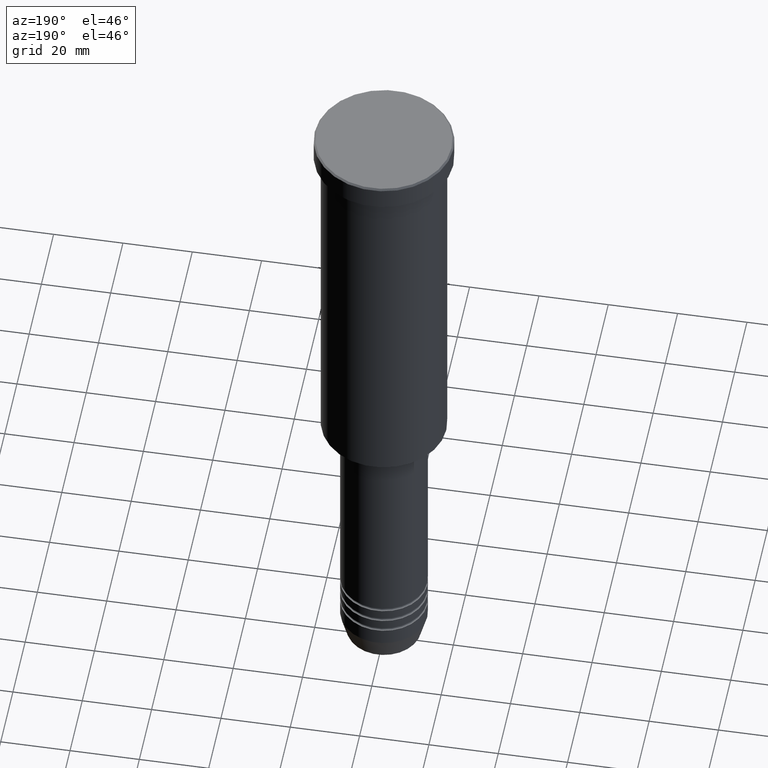
[diagram: clean part render]
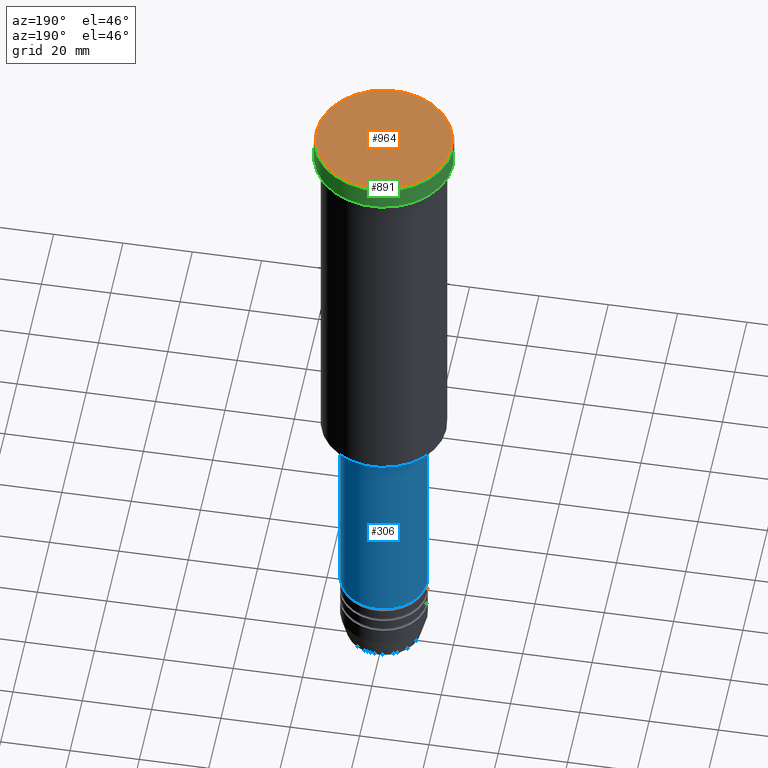
[diagram: same view with three faces highlighted in distinct colors, each labeled with its STEP entity id]
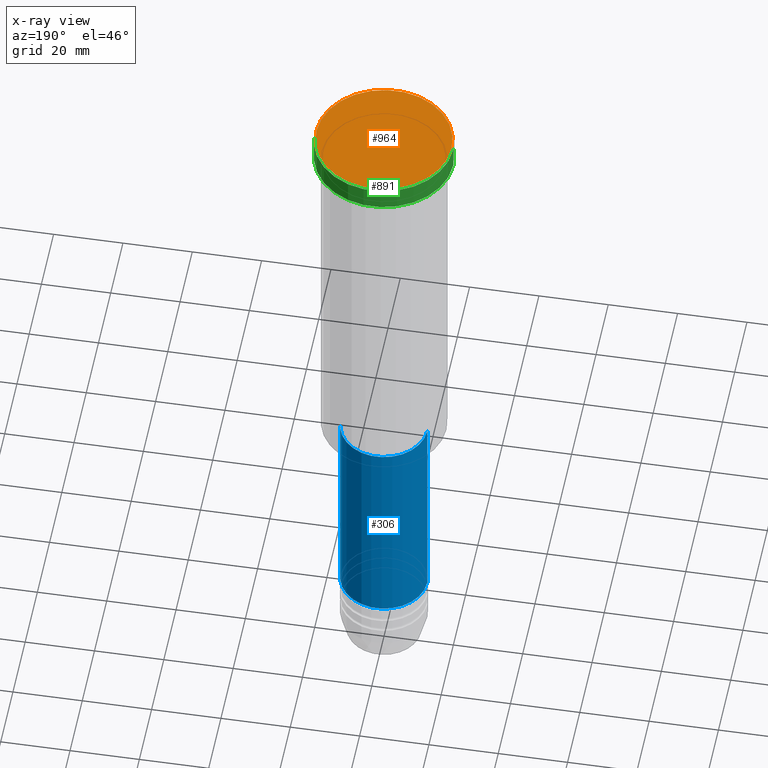
[diagram: x-ray of the same camera — body ghosted, the three highlighted faces saturated]
A machine part, auxiliary view with three faces highlighted in distinct colors.
The next image is the same camera in x-ray (body ghosted, the three faces saturated) — at least one of them is partly hidden behind the body in this view.
Their STEP definitions:

[orange] entity #964 — the highlighted planar face has unit normal (0, -0, 1).
#17 = VERTEX_POINT ( 'NONE', #415 ) ;
#36 = DIRECTION ( 'NONE',  ( -0.000000000000000000, -0.000000000000000000, 1.000000000000000000 ) ) ;
#52 = PLANE ( 'NONE',  #161 ) ;
#100 = EDGE_LOOP ( 'NONE', ( #1017, #473 ) ) ;
#161 = AXIS2_PLACEMENT_3D ( 'NONE', #398, #864, #773 ) ;
#289 = CARTESIAN_POINT ( 'NONE',  ( 0.000000000000000000, 0.000000000000000000, 0.000000000000000000 ) ) ;
#313 = CARTESIAN_POINT ( 'NONE',  ( 0.000000000000000000, 0.000000000000000000, 0.000000000000000000 ) ) ;
#353 = CIRCLE ( 'NONE', #973, 19.49999999999998934 ) ;
#398 = CARTESIAN_POINT ( 'NONE',  ( 0.000000000000000000, 0.000000000000000000, 0.000000000000000000 ) ) ;
#415 = CARTESIAN_POINT ( 'NONE',  ( 19.49999999999998934, 2.418677428316021937E-15, 0.000000000000000000 ) ) ;
#473 = ORIENTED_EDGE ( 'NONE', *, *, #921, .T. ) ;
#563 = DIRECTION ( 'NONE',  ( -0.000000000000000000, -0.000000000000000000, 1.000000000000000000 ) ) ;
#613 = VERTEX_POINT ( 'NONE', #693 ) ;
#693 = CARTESIAN_POINT ( 'NONE',  ( -19.49999999999998934, 0.000000000000000000, 0.000000000000000000 ) ) ;
#757 = DIRECTION ( 'NONE',  ( 1.000000000000000000, 0.000000000000000000, 0.000000000000000000 ) ) ;
#773 = DIRECTION ( 'NONE',  ( 1.000000000000000000, 0.000000000000000000, 0.000000000000000000 ) ) ;
#786 = CIRCLE ( 'NONE', #1035, 19.49999999999998934 ) ;
#851 = EDGE_CURVE ( 'NONE', #613, #17, #786, .T. ) ;
#857 = FACE_OUTER_BOUND ( 'NONE', #100, .T. ) ;
#864 = DIRECTION ( 'NONE',  ( 0.000000000000000000, -0.000000000000000000, 1.000000000000000000 ) ) ;
#921 = EDGE_CURVE ( 'NONE', #17, #613, #353, .T. ) ;
#964 = ADVANCED_FACE ( 'NONE', ( #857 ), #52, .T. ) ;
#973 = AXIS2_PLACEMENT_3D ( 'NONE', #289, #36, #757 ) ;
#1017 = ORIENTED_EDGE ( 'NONE', *, *, #851, .T. ) ;
#1035 = AXIS2_PLACEMENT_3D ( 'NONE', #313, #563, #1149 ) ;
#1149 = DIRECTION ( 'NONE',  ( 1.000000000000000000, 0.000000000000000000, 0.000000000000000000 ) ) ;

[blue] entity #306 — the highlighted cylindrical surface (partial cylindrical patch) has radius 12.5 mm, axis along (-0, -0, 1).
#34 = CARTESIAN_POINT ( 'NONE',  ( -12.50000000000000000, 1.530808498934191521E-15, -117.0000000000000142 ) ) ;
#65 = DIRECTION ( 'NONE',  ( -0.000000000000000000, -0.000000000000000000, 1.000000000000000000 ) ) ;
#66 = AXIS2_PLACEMENT_3D ( 'NONE', #426, #668, #215 ) ;
#112 = EDGE_LOOP ( 'NONE', ( #143, #126, #118, #608 ) ) ;
#118 = ORIENTED_EDGE ( 'NONE', *, *, #957, .F. ) ;
#126 = ORIENTED_EDGE ( 'NONE', *, *, #1143, .T. ) ;
#143 = ORIENTED_EDGE ( 'NONE', *, *, #194, .T. ) ;
#149 = CARTESIAN_POINT ( 'NONE',  ( 0.000000000000000000, 0.000000000000000000, 0.000000000000000000 ) ) ;
#159 = FACE_OUTER_BOUND ( 'NONE', #112, .T. ) ;
#194 = EDGE_CURVE ( 'NONE', #283, #402, #1090, .T. ) ;
#215 = DIRECTION ( 'NONE',  ( 1.000000000000000000, 0.000000000000000000, 0.000000000000000000 ) ) ;
#224 = CARTESIAN_POINT ( 'NONE',  ( 0.000000000000000000, 0.000000000000000000, -117.0000000000000142 ) ) ;
#259 = CARTESIAN_POINT ( 'NONE',  ( 12.50000000000000000, 0.000000000000000000, -117.0000000000000142 ) ) ;
#282 = VECTOR ( 'NONE', #65, 1000.000000000000000 ) ;
#283 = VERTEX_POINT ( 'NONE', #825 ) ;
#306 = ADVANCED_FACE ( 'NONE', ( #159 ), #977, .T. ) ;
#324 = LINE ( 'NONE', #981, #282 ) ;
#355 = VERTEX_POINT ( 'NONE', #34 ) ;
#402 = VERTEX_POINT ( 'NONE', #667 ) ;
#426 = CARTESIAN_POINT ( 'NONE',  ( 0.000000000000000000, 0.000000000000000000, -179.0000000000000284 ) ) ;
#438 = DIRECTION ( 'NONE',  ( -0.000000000000000000, -0.000000000000000000, 1.000000000000000000 ) ) ;
#480 = DIRECTION ( 'NONE',  ( -0.000000000000000000, -0.000000000000000000, 1.000000000000000000 ) ) ;
#482 = AXIS2_PLACEMENT_3D ( 'NONE', #149, #480, #577 ) ;
#485 = DIRECTION ( 'NONE',  ( 1.000000000000000000, 0.000000000000000000, 0.000000000000000000 ) ) ;
#487 = VECTOR ( 'NONE', #438, 1000.000000000000000 ) ;
#536 = LINE ( 'NONE', #809, #487 ) ;
#574 = EDGE_CURVE ( 'NONE', #283, #1159, #324, .T. ) ;
#575 = DIRECTION ( 'NONE',  ( -0.000000000000000000, -0.000000000000000000, 1.000000000000000000 ) ) ;
#577 = DIRECTION ( 'NONE',  ( 1.000000000000000000, 0.000000000000000000, 0.000000000000000000 ) ) ;
#608 = ORIENTED_EDGE ( 'NONE', *, *, #574, .F. ) ;
#662 = AXIS2_PLACEMENT_3D ( 'NONE', #224, #575, #485 ) ;
#667 = CARTESIAN_POINT ( 'NONE',  ( -12.50000000000000000, 1.530808498934191521E-15, -179.0000000000000284 ) ) ;
#668 = DIRECTION ( 'NONE',  ( -0.000000000000000000, -0.000000000000000000, 1.000000000000000000 ) ) ;
#700 = CIRCLE ( 'NONE', #662, 12.50000000000000000 ) ;
#809 = CARTESIAN_POINT ( 'NONE',  ( -12.50000000000000000, 1.530808498934191521E-15, 0.000000000000000000 ) ) ;
#825 = CARTESIAN_POINT ( 'NONE',  ( 12.50000000000000000, 0.000000000000000000, -179.0000000000000284 ) ) ;
#957 = EDGE_CURVE ( 'NONE', #1159, #355, #700, .T. ) ;
#977 = CYLINDRICAL_SURFACE ( 'NONE', #482, 12.50000000000000000 ) ;
#981 = CARTESIAN_POINT ( 'NONE',  ( 12.50000000000000000, 0.000000000000000000, 0.000000000000000000 ) ) ;
#1090 = CIRCLE ( 'NONE', #66, 12.50000000000000000 ) ;
#1143 = EDGE_CURVE ( 'NONE', #402, #355, #536, .T. ) ;
#1159 = VERTEX_POINT ( 'NONE', #259 ) ;

[green] entity #891 — the highlighted cylindrical surface (partial cylindrical patch) has radius 20 mm, axis along (-0, -0, 1).
#64 = VECTOR ( 'NONE', #494, 1000.000000000000000 ) ;
#78 = EDGE_LOOP ( 'NONE', ( #254, #1120, #965, #943 ) ) ;
#80 = DIRECTION ( 'NONE',  ( 0.000000000000000000, 0.000000000000000000, -1.000000000000000000 ) ) ;
#98 = EDGE_CURVE ( 'NONE', #393, #919, #606, .T. ) ;
#125 = FACE_OUTER_BOUND ( 'NONE', #78, .T. ) ;
#133 = CARTESIAN_POINT ( 'NONE',  ( -20.00000000000000000, 2.449293598294706513E-15, -6.999999999999995559 ) ) ;
#138 = CIRCLE ( 'NONE', #815, 20.00000000000000000 ) ;
#225 = LINE ( 'NONE', #1058, #464 ) ;
#227 = DIRECTION ( 'NONE',  ( -0.000000000000000000, -0.000000000000000000, 1.000000000000000000 ) ) ;
#230 = AXIS2_PLACEMENT_3D ( 'NONE', #421, #793, #246 ) ;
#246 = DIRECTION ( 'NONE',  ( 1.000000000000000000, 0.000000000000000000, 0.000000000000000000 ) ) ;
#254 = ORIENTED_EDGE ( 'NONE', *, *, #568, .T. ) ;
#320 = VERTEX_POINT ( 'NONE', #1078 ) ;
#323 = EDGE_CURVE ( 'NONE', #919, #1129, #138, .T. ) ;
#393 = VERTEX_POINT ( 'NONE', #133 ) ;
#421 = CARTESIAN_POINT ( 'NONE',  ( 0.000000000000000000, 0.000000000000000000, -6.999999999999995559 ) ) ;
#433 = AXIS2_PLACEMENT_3D ( 'NONE', #1048, #227, #665 ) ;
#463 = EDGE_CURVE ( 'NONE', #320, #1129, #225, .T. ) ;
#464 = VECTOR ( 'NONE', #1130, 1000.000000000000000 ) ;
#494 = DIRECTION ( 'NONE',  ( -0.000000000000000000, -0.000000000000000000, 1.000000000000000000 ) ) ;
#568 = EDGE_CURVE ( 'NONE', #320, #393, #1054, .T. ) ;
#606 = LINE ( 'NONE', #1147, #64 ) ;
#665 = DIRECTION ( 'NONE',  ( 1.000000000000000000, 0.000000000000000000, 0.000000000000000000 ) ) ;
#705 = DIRECTION ( 'NONE',  ( 1.000000000000000000, 0.000000000000000000, 0.000000000000000000 ) ) ;
#729 = CARTESIAN_POINT ( 'NONE',  ( 20.00000000000000000, 0.000000000000000000, -0.4999999999999970024 ) ) ;
#793 = DIRECTION ( 'NONE',  ( -0.000000000000000000, -0.000000000000000000, 1.000000000000000000 ) ) ;
#815 = AXIS2_PLACEMENT_3D ( 'NONE', #892, #80, #705 ) ;
#844 = CYLINDRICAL_SURFACE ( 'NONE', #433, 20.00000000000000000 ) ;
#891 = ADVANCED_FACE ( 'NONE', ( #125 ), #844, .T. ) ;
#892 = CARTESIAN_POINT ( 'NONE',  ( 0.000000000000000000, 0.000000000000000000, -0.4999999999999970024 ) ) ;
#919 = VERTEX_POINT ( 'NONE', #1037 ) ;
#943 = ORIENTED_EDGE ( 'NONE', *, *, #463, .F. ) ;
#965 = ORIENTED_EDGE ( 'NONE', *, *, #323, .T. ) ;
#1037 = CARTESIAN_POINT ( 'NONE',  ( -20.00000000000000000, 2.449293598294706513E-15, -0.4999999999999970024 ) ) ;
#1048 = CARTESIAN_POINT ( 'NONE',  ( 0.000000000000000000, 0.000000000000000000, 0.000000000000000000 ) ) ;
#1054 = CIRCLE ( 'NONE', #230, 20.00000000000000000 ) ;
#1058 = CARTESIAN_POINT ( 'NONE',  ( 20.00000000000000000, 0.000000000000000000, 0.000000000000000000 ) ) ;
#1078 = CARTESIAN_POINT ( 'NONE',  ( 20.00000000000000000, 0.000000000000000000, -6.999999999999995559 ) ) ;
#1120 = ORIENTED_EDGE ( 'NONE', *, *, #98, .T. ) ;
#1129 = VERTEX_POINT ( 'NONE', #729 ) ;
#1130 = DIRECTION ( 'NONE',  ( -0.000000000000000000, -0.000000000000000000, 1.000000000000000000 ) ) ;
#1147 = CARTESIAN_POINT ( 'NONE',  ( -20.00000000000000000, 2.449293598294706513E-15, 0.000000000000000000 ) ) ;